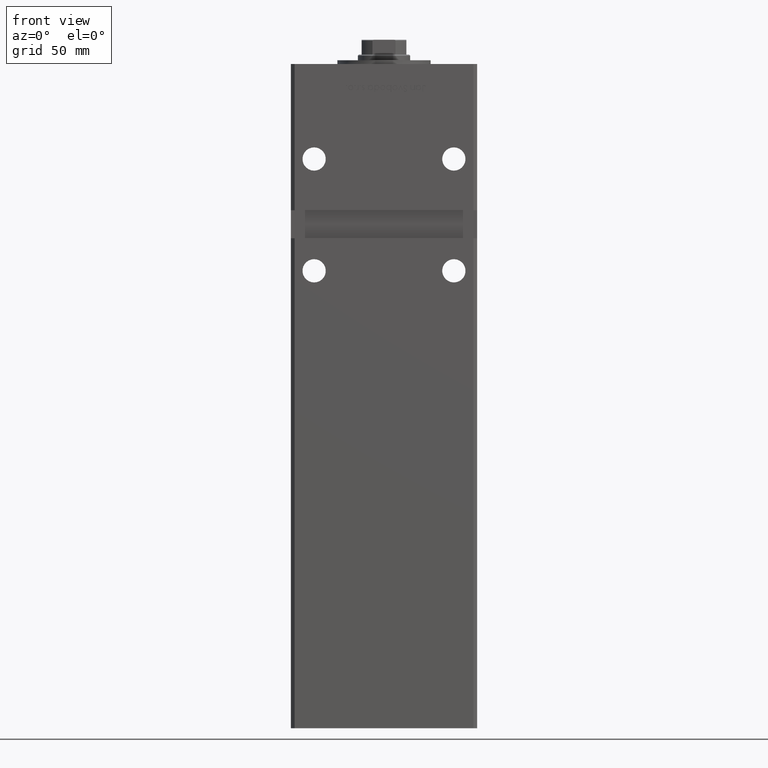
[diagram: clean part render]
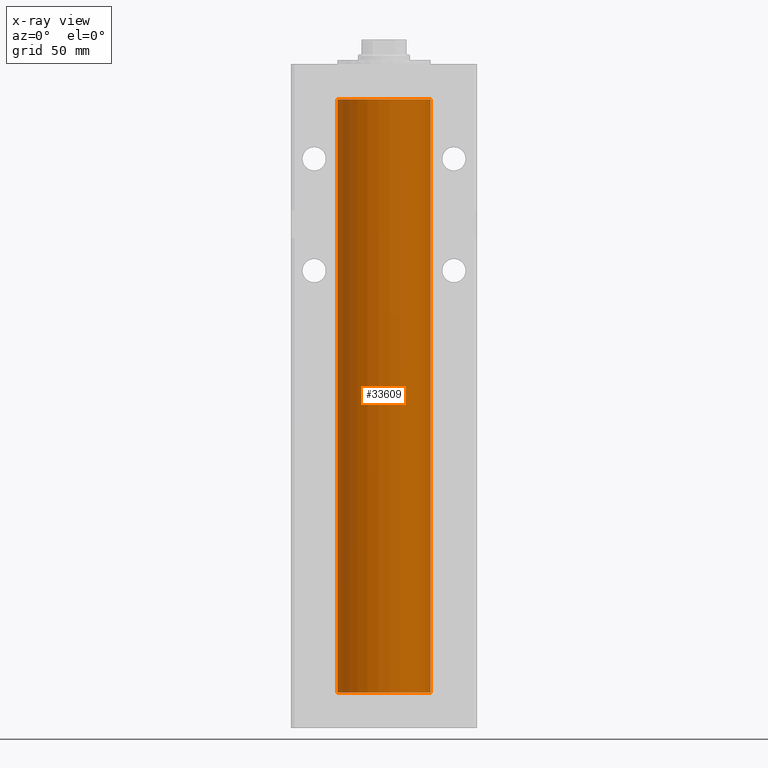
[diagram: x-ray — body ghosted, one internal face saturated and labeled with its STEP entity id]
A machine part, front view, then the same camera in x-ray: the body is ghosted and one INTERNAL B-rep face — a face not visible from any outside direction — is saturated and labeled: STEP entity #33609.
In plain terms, the highlighted cylindrical surface (partial cylindrical patch) has radius 25 mm, axis along (-0, -0, -1).
Its self-contained STEP definition (entity closure, byte-faithful):
#582 = VECTOR ( 'NONE', #31352, 1000.000000000000000 ) ;
#887 = ORIENTED_EDGE ( 'NONE', *, *, #7063, .F. ) ;
#2899 = CARTESIAN_POINT ( 'NONE',  ( -25.00000000000000000, 0.000000000000000000, 0.000000000000000000 ) ) ;
#3334 = LINE ( 'NONE', #24065, #582 ) ;
#7063 = EDGE_CURVE ( 'NONE', #53093, #47840, #37216, .T. ) ;
#11798 = DIRECTION ( 'NONE',  ( -0.000000000000000000, -0.000000000000000000, -1.000000000000000000 ) ) ;
#13017 = CARTESIAN_POINT ( 'NONE',  ( 0.000000000000000000, 0.000000000000000000, 0.000000000000000000 ) ) ;
#14658 = VECTOR ( 'NONE', #29155, 1000.000000000000000 ) ;
#15054 = FACE_OUTER_BOUND ( 'NONE', #25719, .T. ) ;
#15678 = EDGE_CURVE ( 'NONE', #53093, #43696, #41397, .T. ) ;
#16115 = CYLINDRICAL_SURFACE ( 'NONE', #46941, 25.00000000000000000 ) ;
#24065 = CARTESIAN_POINT ( 'NONE',  ( 25.00000000000000000, 3.061616997868383043E-15, 318.5000000000000000 ) ) ;
#25411 = DIRECTION ( 'NONE',  ( 1.000000000000000000, 0.000000000000000000, 0.000000000000000000 ) ) ;
#25503 = CARTESIAN_POINT ( 'NONE',  ( 25.00000000000000000, 3.061616997868383043E-15, 0.000000000000000000 ) ) ;
#25719 = EDGE_LOOP ( 'NONE', ( #32891, #26932, #32865, #887 ) ) ;
#26344 = CARTESIAN_POINT ( 'NONE',  ( -25.00000000000000000, 0.000000000000000000, 318.5000000000000000 ) ) ;
#26932 = ORIENTED_EDGE ( 'NONE', *, *, #34908, .T. ) ;
#28227 = DIRECTION ( 'NONE',  ( -1.000000000000000000, 0.000000000000000000, 0.000000000000000000 ) ) ;
#29155 = DIRECTION ( 'NONE',  ( -0.000000000000000000, -0.000000000000000000, -1.000000000000000000 ) ) ;
#31352 = DIRECTION ( 'NONE',  ( -0.000000000000000000, -0.000000000000000000, -1.000000000000000000 ) ) ;
#32865 = ORIENTED_EDGE ( 'NONE', *, *, #36228, .F. ) ;
#32891 = ORIENTED_EDGE ( 'NONE', *, *, #15678, .T. ) ;
#33609 = ADVANCED_FACE ( 'NONE', ( #15054 ), #16115, .F. ) ;
#34908 = EDGE_CURVE ( 'NONE', #43696, #49918, #3334, .T. ) ;
#35851 = AXIS2_PLACEMENT_3D ( 'NONE', #13017, #45843, #25411 ) ;
#36228 = EDGE_CURVE ( 'NONE', #47840, #49918, #51318, .T. ) ;
#37216 = LINE ( 'NONE', #40446, #14658 ) ;
#38230 = CARTESIAN_POINT ( 'NONE',  ( 0.000000000000000000, 0.000000000000000000, 318.5000000000000000 ) ) ;
#40446 = CARTESIAN_POINT ( 'NONE',  ( -25.00000000000000000, 0.000000000000000000, 318.5000000000000000 ) ) ;
#41397 = CIRCLE ( 'NONE', #48252, 25.00000000000000000 ) ;
#43696 = VERTEX_POINT ( 'NONE', #46071 ) ;
#44355 = CARTESIAN_POINT ( 'NONE',  ( 0.000000000000000000, 0.000000000000000000, 318.5000000000000000 ) ) ;
#45843 = DIRECTION ( 'NONE',  ( -0.000000000000000000, 0.000000000000000000, 1.000000000000000000 ) ) ;
#46071 = CARTESIAN_POINT ( 'NONE',  ( 25.00000000000000000, 3.061616997868383043E-15, 318.5000000000000000 ) ) ;
#46941 = AXIS2_PLACEMENT_3D ( 'NONE', #44355, #11798, #28227 ) ;
#47840 = VERTEX_POINT ( 'NONE', #2899 ) ;
#48252 = AXIS2_PLACEMENT_3D ( 'NONE', #38230, #50847, #51837 ) ;
#49918 = VERTEX_POINT ( 'NONE', #25503 ) ;
#50847 = DIRECTION ( 'NONE',  ( -0.000000000000000000, 0.000000000000000000, 1.000000000000000000 ) ) ;
#51318 = CIRCLE ( 'NONE', #35851, 25.00000000000000000 ) ;
#51837 = DIRECTION ( 'NONE',  ( 1.000000000000000000, 0.000000000000000000, 0.000000000000000000 ) ) ;
#53093 = VERTEX_POINT ( 'NONE', #26344 ) ;